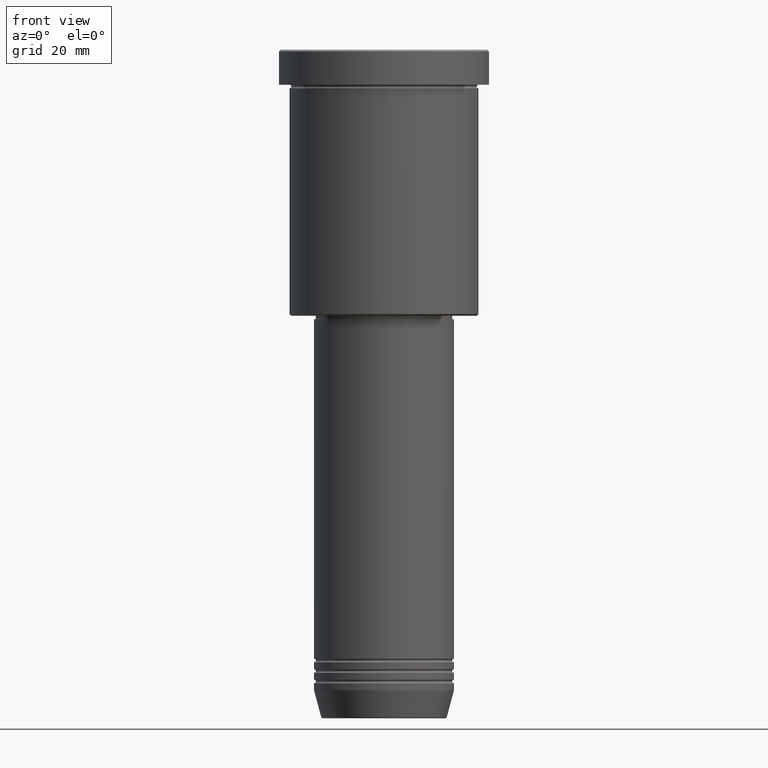
[diagram: clean part render]
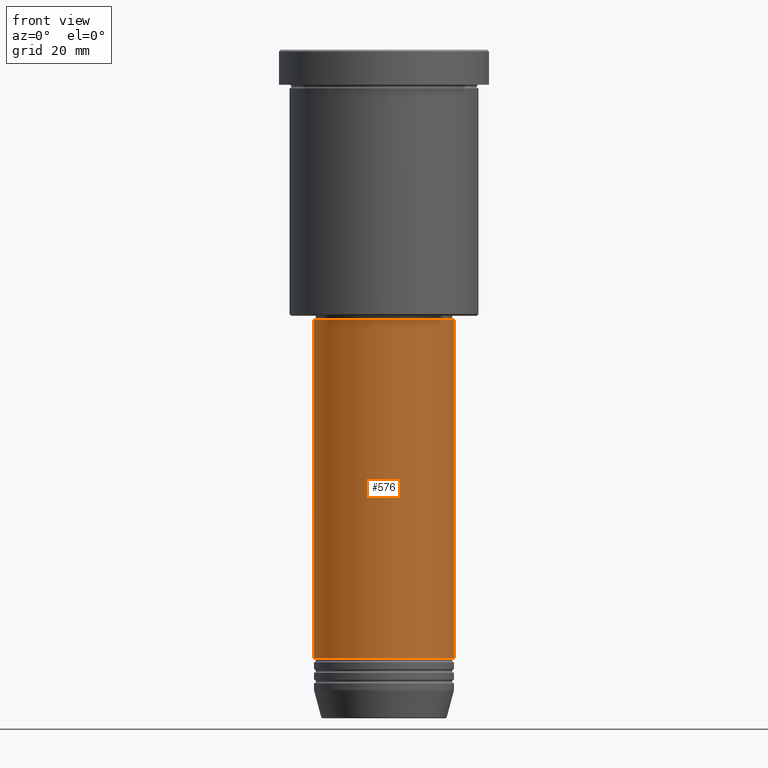
[diagram: same view with one face highlighted and labeled with its STEP entity id]
A machine part, front view. The second image highlights one B-rep face of the part: STEP entity #576.
In plain terms, the highlighted cylindrical surface (partial cylindrical patch) has radius 20 mm, axis along (-0, -0, 1).
Its self-contained STEP definition (entity closure, byte-faithful):
#85 = CIRCLE ( 'NONE', #704, 20.00000000000000000 ) ;
#115 = ORIENTED_EDGE ( 'NONE', *, *, #741, .T. ) ;
#124 = DIRECTION ( 'NONE',  ( -0.000000000000000000, -0.000000000000000000, 1.000000000000000000 ) ) ;
#135 = DIRECTION ( 'NONE',  ( 1.000000000000000000, 0.000000000000000000, 0.000000000000000000 ) ) ;
#155 = CARTESIAN_POINT ( 'NONE',  ( 0.000000000000000000, 0.000000000000000000, 0.000000000000000000 ) ) ;
#168 = CIRCLE ( 'NONE', #969, 20.00000000000000000 ) ;
#209 = CARTESIAN_POINT ( 'NONE',  ( -20.00000000000000000, 2.449293598294706513E-15, -174.0000000000000000 ) ) ;
#268 = FACE_OUTER_BOUND ( 'NONE', #1062, .T. ) ;
#275 = CARTESIAN_POINT ( 'NONE',  ( 20.00000000000000000, 0.000000000000000000, -174.0000000000000000 ) ) ;
#286 = LINE ( 'NONE', #292, #317 ) ;
#292 = CARTESIAN_POINT ( 'NONE',  ( 20.00000000000000000, 0.000000000000000000, 0.000000000000000000 ) ) ;
#311 = DIRECTION ( 'NONE',  ( -0.000000000000000000, -0.000000000000000000, 1.000000000000000000 ) ) ;
#317 = VECTOR ( 'NONE', #124, 1000.000000000000000 ) ;
#375 = DIRECTION ( 'NONE',  ( -0.000000000000000000, -0.000000000000000000, 1.000000000000000000 ) ) ;
#513 = AXIS2_PLACEMENT_3D ( 'NONE', #155, #797, #882 ) ;
#533 = VERTEX_POINT ( 'NONE', #275 ) ;
#548 = LINE ( 'NONE', #1027, #1065 ) ;
#568 = CARTESIAN_POINT ( 'NONE',  ( 0.000000000000000000, 0.000000000000000000, -174.0000000000000000 ) ) ;
#576 = ADVANCED_FACE ( 'NONE', ( #268 ), #1183, .T. ) ;
#665 = EDGE_CURVE ( 'NONE', #676, #816, #548, .T. ) ;
#676 = VERTEX_POINT ( 'NONE', #209 ) ;
#704 = AXIS2_PLACEMENT_3D ( 'NONE', #568, #764, #1122 ) ;
#741 = EDGE_CURVE ( 'NONE', #676, #533, #85, .T. ) ;
#764 = DIRECTION ( 'NONE',  ( -0.000000000000000000, -0.000000000000000000, 1.000000000000000000 ) ) ;
#797 = DIRECTION ( 'NONE',  ( -0.000000000000000000, -0.000000000000000000, 1.000000000000000000 ) ) ;
#809 = EDGE_CURVE ( 'NONE', #816, #862, #168, .T. ) ;
#816 = VERTEX_POINT ( 'NONE', #1052 ) ;
#855 = CARTESIAN_POINT ( 'NONE',  ( 0.000000000000000000, 0.000000000000000000, -77.00000000000001421 ) ) ;
#862 = VERTEX_POINT ( 'NONE', #989 ) ;
#878 = ORIENTED_EDGE ( 'NONE', *, *, #809, .F. ) ;
#882 = DIRECTION ( 'NONE',  ( 1.000000000000000000, 0.000000000000000000, 0.000000000000000000 ) ) ;
#920 = ORIENTED_EDGE ( 'NONE', *, *, #1076, .T. ) ;
#969 = AXIS2_PLACEMENT_3D ( 'NONE', #855, #311, #135 ) ;
#989 = CARTESIAN_POINT ( 'NONE',  ( 20.00000000000000000, 0.000000000000000000, -77.00000000000001421 ) ) ;
#1027 = CARTESIAN_POINT ( 'NONE',  ( -20.00000000000000000, 2.449293598294706513E-15, 0.000000000000000000 ) ) ;
#1052 = CARTESIAN_POINT ( 'NONE',  ( -20.00000000000000000, 2.449293598294706513E-15, -77.00000000000001421 ) ) ;
#1062 = EDGE_LOOP ( 'NONE', ( #1152, #115, #920, #878 ) ) ;
#1065 = VECTOR ( 'NONE', #375, 1000.000000000000000 ) ;
#1076 = EDGE_CURVE ( 'NONE', #533, #862, #286, .T. ) ;
#1122 = DIRECTION ( 'NONE',  ( 1.000000000000000000, 0.000000000000000000, 0.000000000000000000 ) ) ;
#1152 = ORIENTED_EDGE ( 'NONE', *, *, #665, .F. ) ;
#1183 = CYLINDRICAL_SURFACE ( 'NONE', #513, 20.00000000000000000 ) ;